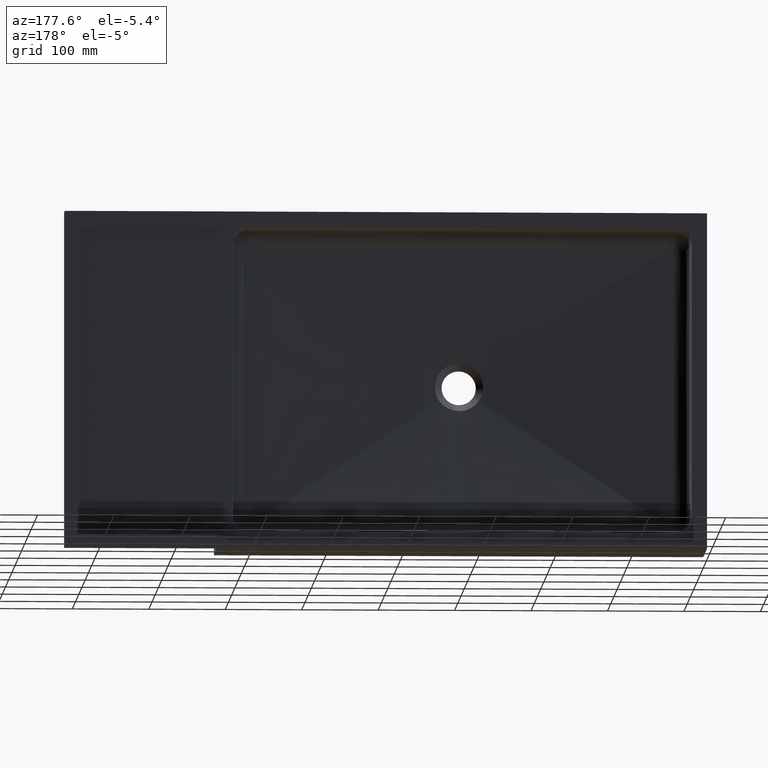
[diagram: clean part render]
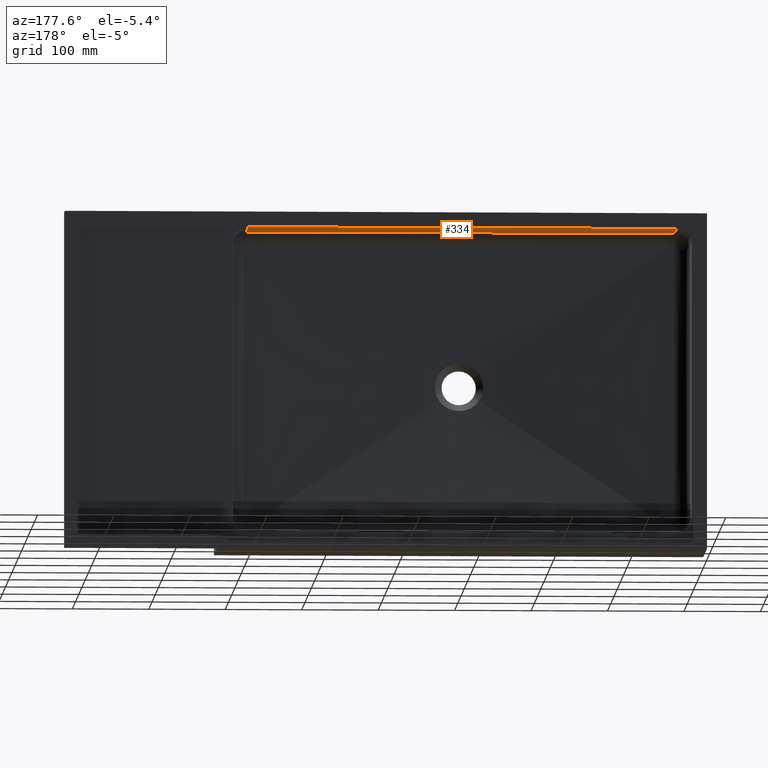
[diagram: same view with one face highlighted and labeled with its STEP entity id]
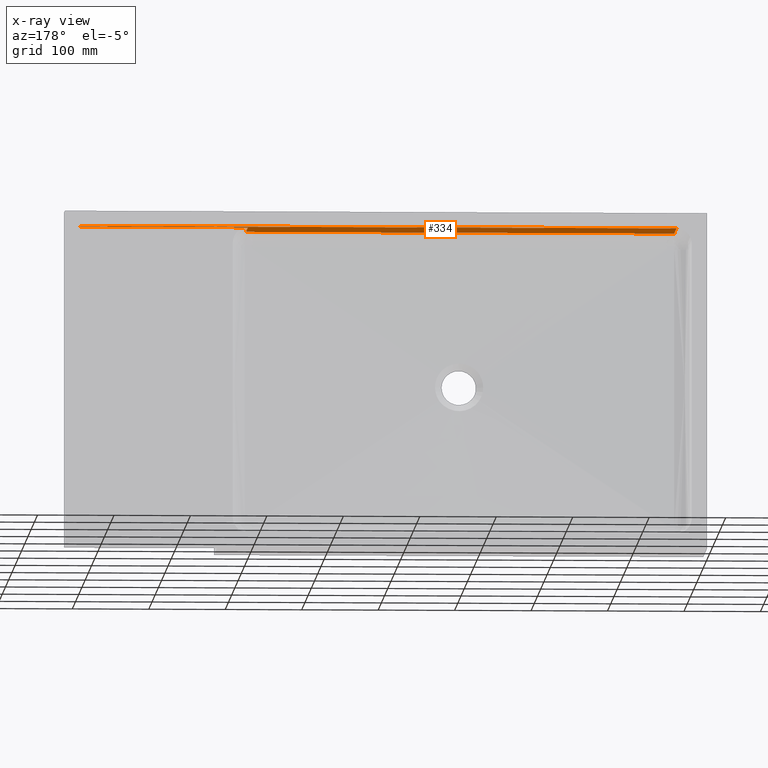
[diagram: x-ray of the same camera — body ghosted, the highlighted face saturated]
A machine part, auxiliary view. The second image highlights one B-rep face of the part: STEP entity #334.
The next image is the same camera in x-ray: the body ghosted, the highlighted face saturated — about 0% of this face is hidden behind the body in this view.
In plain terms, the highlighted planar face has unit normal (-0, 0, 1).
Its self-contained STEP definition (entity closure, byte-faithful):
#13 = B_SPLINE_CURVE_WITH_KNOTS ( 'NONE', 3,
 ( #339, #1087, #1828, #161 ),
 .UNSPECIFIED., .F., .F.,
 ( 4, 4 ),
 ( 2.081668171172168513E-17, 0.009442168513013226433 ),
 .UNSPECIFIED. ) ;
#40 = VECTOR ( 'NONE', #788, 1000.000000000000000 ) ;
#55 = CARTESIAN_POINT ( 'NONE',  ( 600.0000000000000000, 49.09846963104313744, -20.00000000000000000 ) ) ;
#87 = LINE ( 'NONE', #819, #2306 ) ;
#148 = CARTESIAN_POINT ( 'NONE',  ( 820.0000000000001137, -352.2135954999579894, -20.00000000000000355 ) ) ;
#161 = CARTESIAN_POINT ( 'NONE',  ( 40.00000000000000711, 49.09616694392557434, -20.00000000000000000 ) ) ;
#238 = CARTESIAN_POINT ( 'NONE',  ( 600.0000000000000000, 109.9999999999999858, -20.00000000000000000 ) ) ;
#251 = ORIENTED_EDGE ( 'NONE', *, *, #813, .T. ) ;
#302 = CARTESIAN_POINT ( 'NONE',  ( 229.8107049560385065, 48.58877967900190242, -20.00000000000000711 ) ) ;
#334 = ADVANCED_FACE ( 'NONE', ( #1366 ), #2112, .F. ) ;
#336 = CARTESIAN_POINT ( 'NONE',  ( 590.5678696481256793, 48.66089317560069816, -20.00000000000002487 ) ) ;
#339 = CARTESIAN_POINT ( 'NONE',  ( 49.43213035187419280, 48.66089317560071237, -19.99999999999997513 ) ) ;
#349 = CARTESIAN_POINT ( 'NONE',  ( 599.9999999999997726, 49.09616694392556724, -20.00000000000000000 ) ) ;
#406 = ORIENTED_EDGE ( 'NONE', *, *, #762, .T. ) ;
#428 = ORIENTED_EDGE ( 'NONE', *, *, #1897, .T. ) ;
#440 = CARTESIAN_POINT ( 'NONE',  ( 590.5678696481256793, 48.66089317560069816, -20.00000000000002487 ) ) ;
#442 = CARTESIAN_POINT ( 'NONE',  ( 20.00000000000000000, -721.1102550927979564, -20.00000000000000000 ) ) ;
#486 = CARTESIAN_POINT ( 'NONE',  ( 590.5678696481256793, 48.66089317560069816, -20.00000000000002487 ) ) ;
#527 = CARTESIAN_POINT ( 'NONE',  ( 49.43213035187419280, 48.66089317560071237, -19.99999999999997513 ) ) ;
#613 = CARTESIAN_POINT ( 'NONE',  ( 39.99999999999999289, 119.9999999999997726, -20.00000000000000000 ) ) ;
#621 = CARTESIAN_POINT ( 'NONE',  ( 599.9999999999997726, 49.09616694392556724, -20.00000000000000000 ) ) ;
#648 = DIRECTION ( 'NONE',  ( 1.000000000000000000, 0.0000000000000000000, 0.0000000000000000000 ) ) ;
#697 = CARTESIAN_POINT ( 'NONE',  ( 820.0000000000001137, 120.0000000000000000, -20.00000000000000355 ) ) ;
#762 = EDGE_CURVE ( 'NONE', #2239, #1836, #1718, .T. ) ;
#788 = DIRECTION ( 'NONE',  ( -0.0000000000000000000, -1.000000000000000000, 0.0000000000000000000 ) ) ;
#813 = EDGE_CURVE ( 'NONE', #1361, #1315, #2341, .T. ) ;
#819 = CARTESIAN_POINT ( 'NONE',  ( -3.469446951953611231E-16, 109.9999999999999858, -19.99999999999998934 ) ) ;
#888 = DIRECTION ( 'NONE',  ( -0.0000000000000000000, 1.000000000000000000, -0.0000000000000000000 ) ) ;
#945 = VERTEX_POINT ( 'NONE', #238 ) ;
#987 = CARTESIAN_POINT ( 'NONE',  ( 39.99999999999999289, 120.0000000000000000, -20.00000000000000000 ) ) ;
#1009 = EDGE_LOOP ( 'NONE', ( #1173, #1214, #251, #428, #1414, #406, #2099, #1350 ) ) ;
#1047 = CARTESIAN_POINT ( 'NONE',  ( 139.6214174718603829, 48.62551107600922506, -19.99999999999997513 ) ) ;
#1087 = CARTESIAN_POINT ( 'NONE',  ( 46.28808074245205972, 48.80585091257176344, -20.00000000000000000 ) ) ;
#1137 = EDGE_CURVE ( 'NONE', #1467, #2035, #1814, .T. ) ;
#1173 = ORIENTED_EDGE ( 'NONE', *, *, #2294, .T. ) ;
#1177 = EDGE_CURVE ( 'NONE', #1716, #2239, #13, .T. ) ;
#1187 = DIRECTION ( 'NONE',  ( -0.0000000000000000000, 0.0000000000000000000, 1.000000000000000000 ) ) ;
#1208 = CARTESIAN_POINT ( 'NONE',  ( 40.00000000000000711, 49.09616694392557434, -20.00000000000000000 ) ) ;
#1214 = ORIENTED_EDGE ( 'NONE', *, *, #1808, .T. ) ;
#1227 = CARTESIAN_POINT ( 'NONE',  ( 500.3785825281394750, 48.62551107600918954, -20.00000000000002132 ) ) ;
#1302 = VECTOR ( 'NONE', #888, 1000.000000000000000 ) ;
#1315 = VERTEX_POINT ( 'NONE', #336 ) ;
#1350 = ORIENTED_EDGE ( 'NONE', *, *, #1137, .F. ) ;
#1357 = DIRECTION ( 'NONE',  ( 0.0000000000000000000, 1.000000000000000000, -0.0000000000000000000 ) ) ;
#1361 = VERTEX_POINT ( 'NONE', #349 ) ;
#1364 = CARTESIAN_POINT ( 'NONE',  ( 596.8559624500046539, 48.95094788100595906, -20.00000000000000000 ) ) ;
#1366 = FACE_OUTER_BOUND ( 'NONE', #1009, .T. ) ;
#1370 = VECTOR ( 'NONE', #648, 1000.000000000000000 ) ;
#1391 = B_SPLINE_CURVE_WITH_KNOTS ( 'NONE', 3,
 ( #486, #1227, #1974, #302, #1047, #1787 ),
 .UNSPECIFIED., .F., .F.,
 ( 4, 2, 4 ),
 ( 0.02943213257703585287, 0.3000000147504364723, 0.5705678969238370257 ),
 .UNSPECIFIED. ) ;
#1414 = ORIENTED_EDGE ( 'NONE', *, *, #1177, .T. ) ;
#1467 = VERTEX_POINT ( 'NONE', #1683 ) ;
#1561 = DIRECTION ( 'NONE',  ( -1.000000000000000000, 0.0000000000000000000, 1.734723475976806478E-17 ) ) ;
#1569 = LINE ( 'NONE', #2319, #1370 ) ;
#1574 = VECTOR ( 'NONE', #1357, 1000.000000000000000 ) ;
#1650 = AXIS2_PLACEMENT_3D ( 'NONE', #442, #1187, #1932 ) ;
#1683 = CARTESIAN_POINT ( 'NONE',  ( 820.0000000000001137, 109.9999999999999858, -20.00000000000000355 ) ) ;
#1711 = LINE ( 'NONE', #55, #40 ) ;
#1716 = VERTEX_POINT ( 'NONE', #527 ) ;
#1718 = LINE ( 'NONE', #613, #1574 ) ;
#1787 = CARTESIAN_POINT ( 'NONE',  ( 49.43213035187419280, 48.66089317560071237, -19.99999999999997513 ) ) ;
#1808 = EDGE_CURVE ( 'NONE', #945, #1361, #1711, .T. ) ;
#1814 = LINE ( 'NONE', #148, #1302 ) ;
#1828 = CARTESIAN_POINT ( 'NONE',  ( 43.14403754999525376, 48.95094788100596617, -20.00000000000000000 ) ) ;
#1836 = VERTEX_POINT ( 'NONE', #987 ) ;
#1897 = EDGE_CURVE ( 'NONE', #1315, #1716, #1391, .T. ) ;
#1932 = DIRECTION ( 'NONE',  ( 1.000000000000000000, 0.0000000000000000000, 0.0000000000000000000 ) ) ;
#1974 = CARTESIAN_POINT ( 'NONE',  ( 410.1892950439577703, 48.58877967900190953, -20.00000000000001066 ) ) ;
#2035 = VERTEX_POINT ( 'NONE', #697 ) ;
#2099 = ORIENTED_EDGE ( 'NONE', *, *, #2215, .T. ) ;
#2109 = CARTESIAN_POINT ( 'NONE',  ( 593.7119192575478337, 48.80585091257176344, -20.00000000000000000 ) ) ;
#2112 = PLANE ( 'NONE',  #1650 ) ;
#2215 = EDGE_CURVE ( 'NONE', #1836, #2035, #1569, .T. ) ;
#2239 = VERTEX_POINT ( 'NONE', #1208 ) ;
#2294 = EDGE_CURVE ( 'NONE', #1467, #945, #87, .T. ) ;
#2306 = VECTOR ( 'NONE', #1561, 1000.000000000000000 ) ;
#2319 = CARTESIAN_POINT ( 'NONE',  ( 20.00000000000000000, 120.0000000000000000, -20.00000000000000000 ) ) ;
#2341 = B_SPLINE_CURVE_WITH_KNOTS ( 'NONE', 3,
 ( #621, #1364, #2109, #440 ),
 .UNSPECIFIED., .F., .F.,
 ( 4, 4 ),
 ( 0.0000000000000000000, 0.009442168513013085920 ),
 .UNSPECIFIED. ) ;